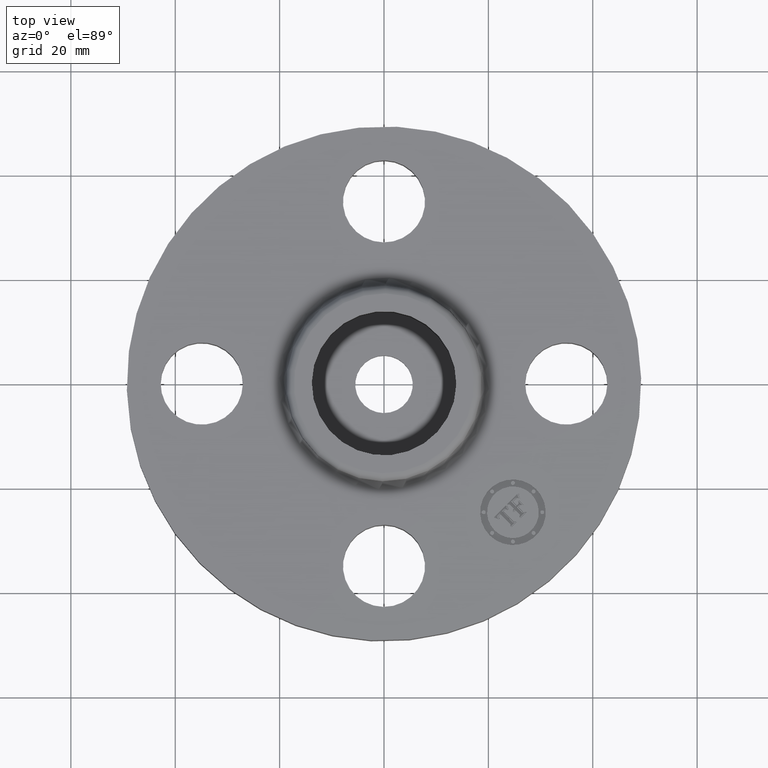
[diagram: clean part render]
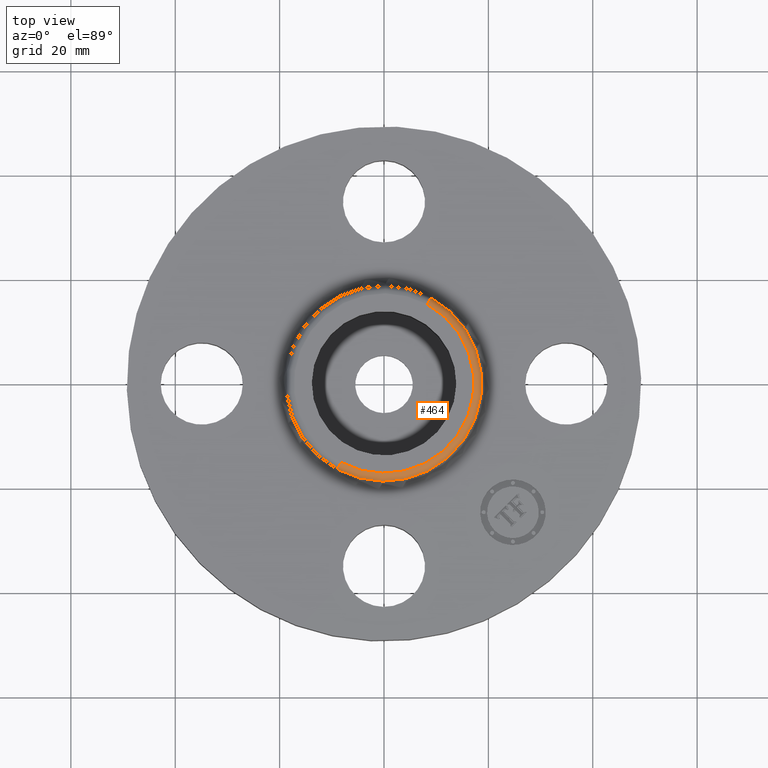
[diagram: same view with one face highlighted and labeled with its STEP entity id]
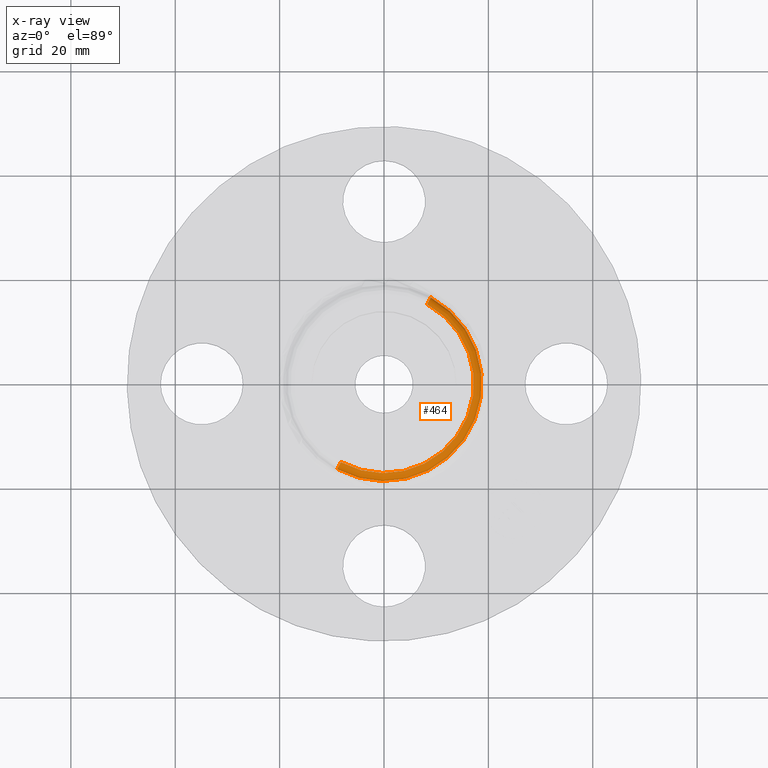
[diagram: x-ray of the same camera — body ghosted, the highlighted face saturated]
A machine part, top view. The second image highlights one B-rep face of the part: STEP entity #464.
The next image is the same camera in x-ray: the body ghosted, the highlighted face saturated — about 0% of this face is hidden behind the body in this view.
In plain terms, the highlighted toroidal blend (fillet) surface has major radius 17.2338 mm and minor (blend) radius 1.524 mm.
Its self-contained STEP definition (entity closure, byte-faithful):
#405=AXIS2_PLACEMENT_3D('Circle Axis2P3D',#403,#404,$) ;
#437=AXIS2_PLACEMENT_3D('Torus Axis2P3D',#434,#435,#436) ;
#441=AXIS2_PLACEMENT_3D('Circle Axis2P3D',#439,#440,$) ;
#448=AXIS2_PLACEMENT_3D('Circle Axis2P3D',#446,#447,$) ;
#455=AXIS2_PLACEMENT_3D('Circle Axis2P3D',#453,#454,$) ;
#400=CARTESIAN_POINT('Vertex',(0.353616246718,0.647290197816,0.510418890662)) ;
#403=CARTESIAN_POINT('Axis2P3D Location',(0.,0.,0.510418890662)) ;
#407=CARTESIAN_POINT('Vertex',(-0.353616246718,-0.647290197816,0.510418890662)) ;
#434=CARTESIAN_POINT('Axis2P3D Location',(0.,0.,0.500000000002)) ;
#439=CARTESIAN_POINT('Axis2P3D Location',(0.325287727474,0.595435191164,0.500000000002)) ;
#443=CARTESIAN_POINT('Vertex',(0.325287727474,0.595435191164,0.560000000002)) ;
#446=CARTESIAN_POINT('Axis2P3D Location',(0.,0.,0.560000000002)) ;
#450=CARTESIAN_POINT('Vertex',(-0.325287727474,-0.595435191164,0.560000000002)) ;
#453=CARTESIAN_POINT('Axis2P3D Location',(-0.325287727474,-0.595435191164,0.500000000002)) ;
#404=DIRECTION('Axis2P3D Direction',(0.,0.,-0.0393700787402)) ;
#435=DIRECTION('Axis2P3D Direction',(0.,0.,-0.0393700787402)) ;
#436=DIRECTION('Axis2P3D XDirection',(-0.0188750212049,-0.0345504945626,0.)) ;
#440=DIRECTION('Axis2P3D Direction',(-0.0345504945626,0.0188750212049,0.)) ;
#447=DIRECTION('Axis2P3D Direction',(0.,0.,-0.0393700787402)) ;
#454=DIRECTION('Axis2P3D Direction',(0.0345504945626,-0.0188750212049,0.)) ;
#459=ORIENTED_EDGE('',*,*,#409,.F.) ;
#460=ORIENTED_EDGE('',*,*,#445,.T.) ;
#461=ORIENTED_EDGE('',*,*,#452,.T.) ;
#462=ORIENTED_EDGE('',*,*,#457,.F.) ;
#464=ADVANCED_FACE('PartBody',(#463),#438,.T.) ;
#406=CIRCLE('generated circle',#405,0.737583249628) ;
#442=CIRCLE('generated circle',#441,0.0600000000002) ;
#449=CIRCLE('generated circle',#448,0.678494784447) ;
#456=CIRCLE('generated circle',#455,0.0600000000002) ;
#438=TOROIDAL_SURFACE('homeo Torus',#437,0.678494784447,0.0600000000002) ;
#409=EDGE_CURVE('',#401,#408,#406,.T.) ;
#445=EDGE_CURVE('',#401,#444,#442,.F.) ;
#452=EDGE_CURVE('',#444,#451,#449,.T.) ;
#457=EDGE_CURVE('',#408,#451,#456,.F.) ;
#458=EDGE_LOOP('',(#459,#460,#461,#462)) ;
#463=FACE_OUTER_BOUND('',#458,.T.) ;
#401=VERTEX_POINT('',#400) ;
#408=VERTEX_POINT('',#407) ;
#444=VERTEX_POINT('',#443) ;
#451=VERTEX_POINT('',#450) ;